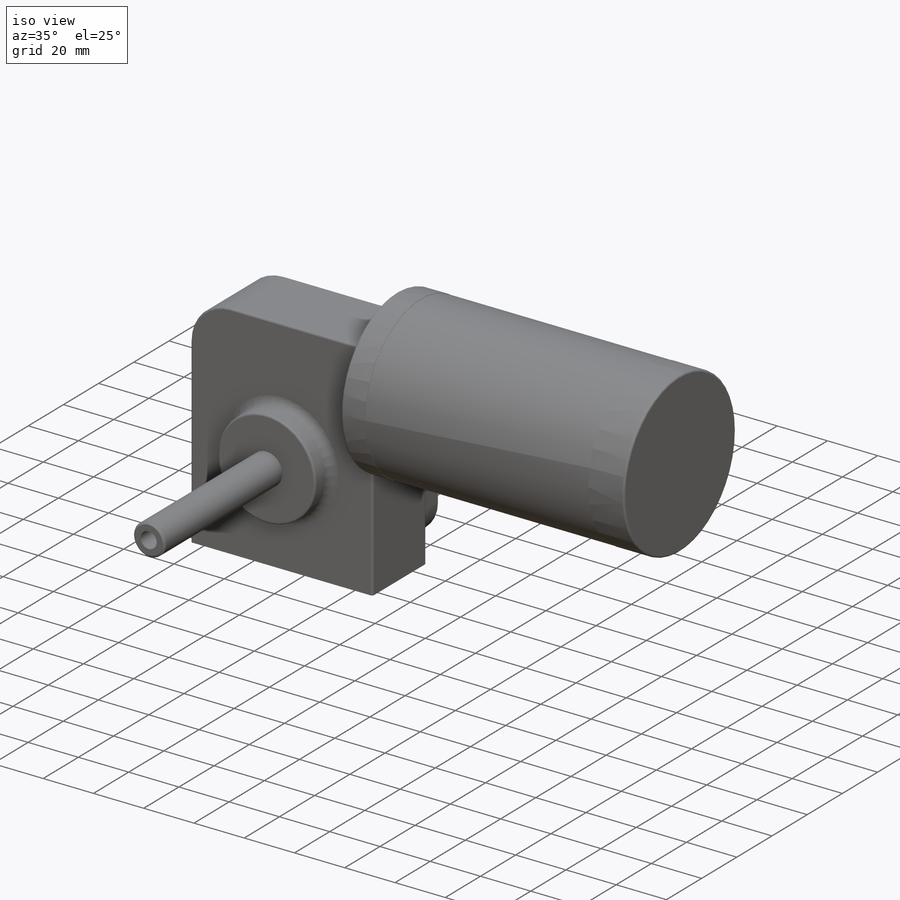
[diagram: iso view]
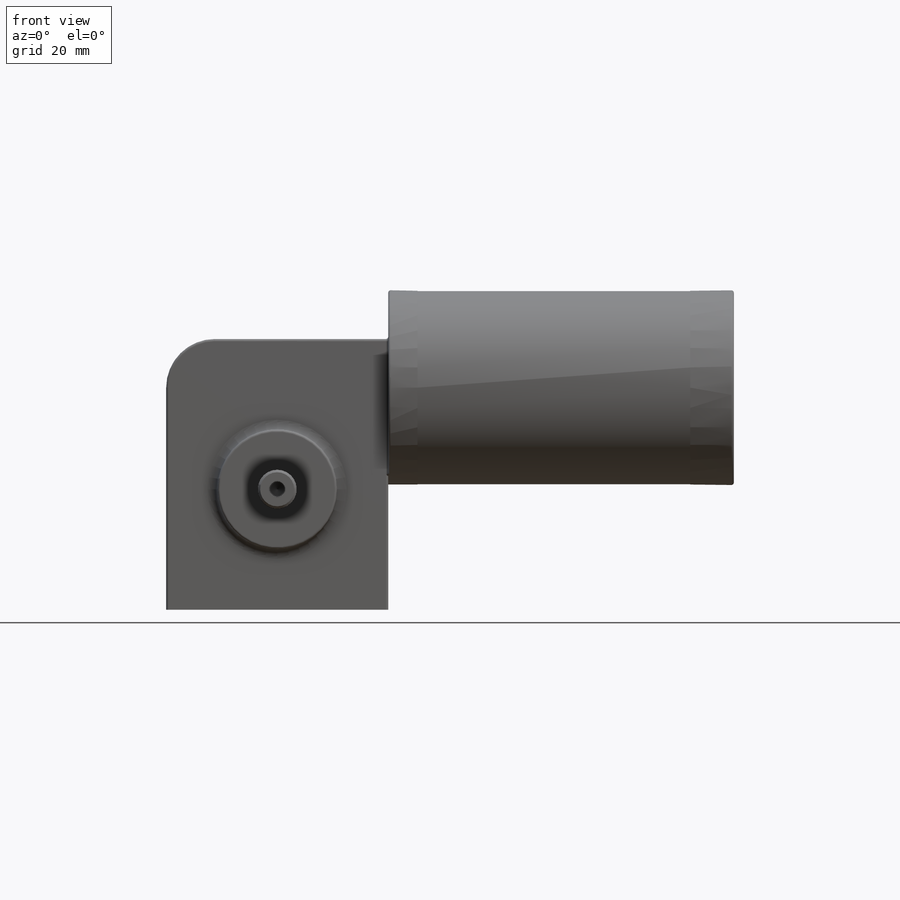
[diagram: front view]
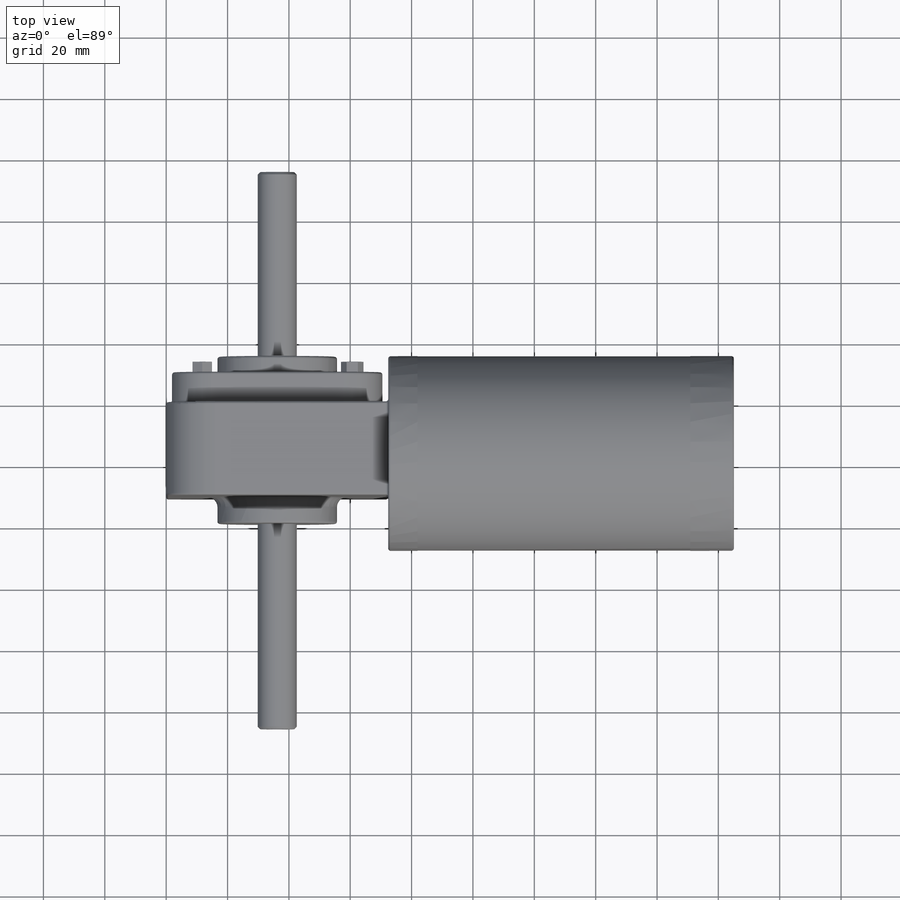
[diagram: top view]
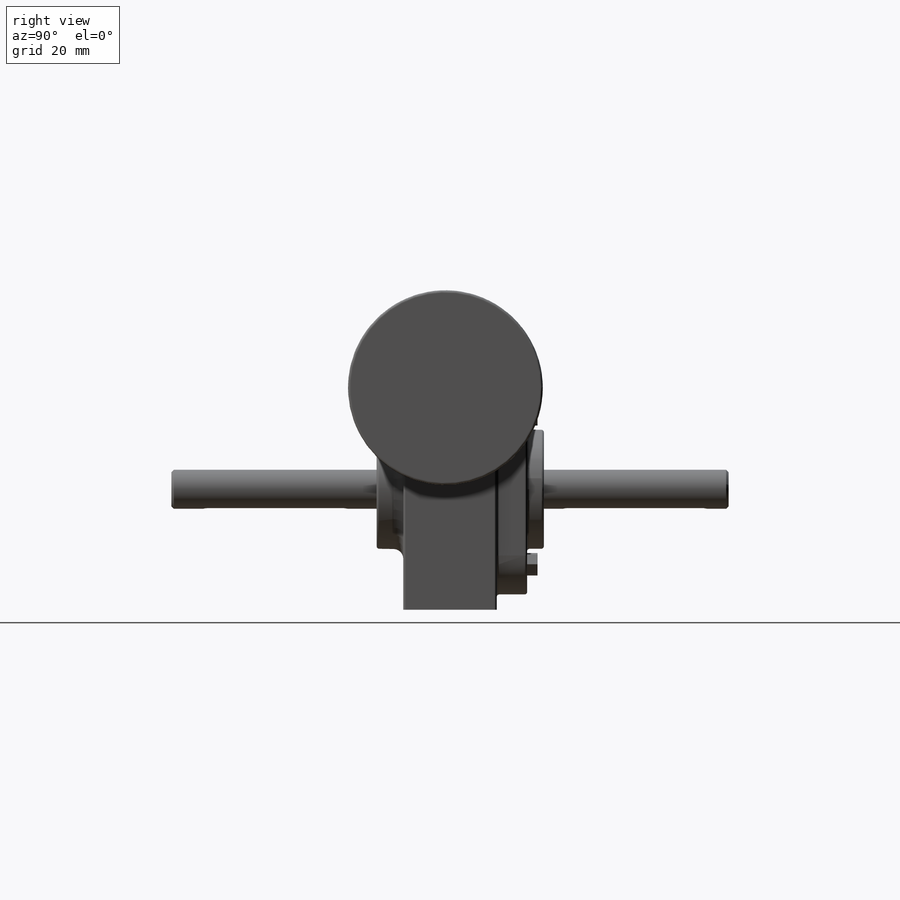
[diagram: right view]
SOLIDWORKS PART (.sldprt)
format: sldprt  version: not decoded by parser v0  size: 647,680 bytes
history: native  units: mm
features: sketch x15, extrude x8, fillet x6, hole x3, plane x2, material x1, chamfer x1, cut_extrude x1 (+13 scaffold rows collapsed)
feature tree (50):
  scaffold x13  (default folders/planes/origin — collapsed)
  material  "N/A"
  sketch  "Sketch1"  dims[D1=88.265mm D2=72.39mm]
  extrude  "Boss-Extrude1"  Depth=30.48mm
  sketch  "Sketch2"  dims[D4=12.7mm D1=68.5546mm D2=68.5546mm D3=14.7193mm]
  extrude  "Boss-Extrude2"  Depth=9.906mm
  sketch  "Sketch3"  dims[D1=38.9509mm]
  extrude  "Boss-Extrude3"  Depth=54.483mm
  plane  "Plane1"
  sketch  "Sketch4"  dims[D1=12.7mm]
  extrude  "Boss-Extrude4"  Depth=181.61mm
  sketch  "Sketch5"  dims[c1.D1=63.5mm c1.D2=15.9512mm c1.D3=~13.74775mm c2.D2=15.875mm]
  extrude  "Boss-Extrude6"  Depth=9.525mm
  sketch  "Sketch6"  dims[D1=63.3095mm]
  extrude  "Boss-Extrude7"  Depth=88.9mm
  sketch  "Sketch7"  dims[D1=63.5mm]
  extrude  "Boss-Extrude8"  Depth=14.224mm
  fillet  "Fillet1"  Radius=15.875mm
  fillet  "Fillet2"  Radius=0.79375mm
  fillet  "Fillet3"  Radius=3.175mm
  fillet  "Fillet4"  Radius=0.79375mm
  fillet  "Fillet5"  Radius=0.79375mm
  hole  "1/4-20 Tapped Hole1"  Diameter=5.1054mm Depth=16.51mm
  sketch  "Sketch9"  dims[D1=17.78mm D2=50.8mm D3=14.605mm]
  sketch  "Sketch8"  dims[hole-wizard template sketch: 34 standard entries collapsed; hole parameters above]
  chamfer  "Chamfer1"  Distance=0.79375mm Angle=45deg
  hole  "1/4-20 Tapped Hole2"  Diameter=5.1054mm Depth=29.21mm
  sketch  "Sketch11"
  sketch  "Sketch10"  dims[hole-wizard template sketch: 29 standard entries collapsed; hole parameters kept: c8.Tap Drill Depth=29.21mm c8.Thread Major Dia.=6.35mm c8.Thread Depth=25.4mm c8.D5=~14.816244mm c8.Drill Angle=118.0deg]
  hole  "1/4-20 Tapped Hole3"  Diameter=5.1054mm Depth=29.21mm
  sketch  "Sketch13"
  sketch  "Sketch12"  dims[hole-wizard template sketch: 29 standard entries collapsed; hole parameters kept: c8.Tap Drill Depth=29.21mm c8.Thread Major Dia.=6.35mm c8.Thread Depth=25.4mm c8.D5=~14.816244mm c8.Drill Angle=118.0deg]
  plane  "Plane2"
  sketch  "Sketch14"  dims[D1=43.815mm D2=3.175mm]
  cut_extrude  "Cut-Extrude1"  Depth=2.032mm
  sketch  "Sketch15"  dims[D1=~3.119134mm D2=48.895mm D3=48.895mm]
  extrude  "Boss-Extrude9"  Depth=3.3909mm
  fillet  "Fillet6"  Radius=0.127mm
decode coverage: 32 of 34 modeling features carry decoded parameters
note: ~ marks probable driven/reference dimensions
note: suppression state not decoded; provenance and decode notes live in map.json
